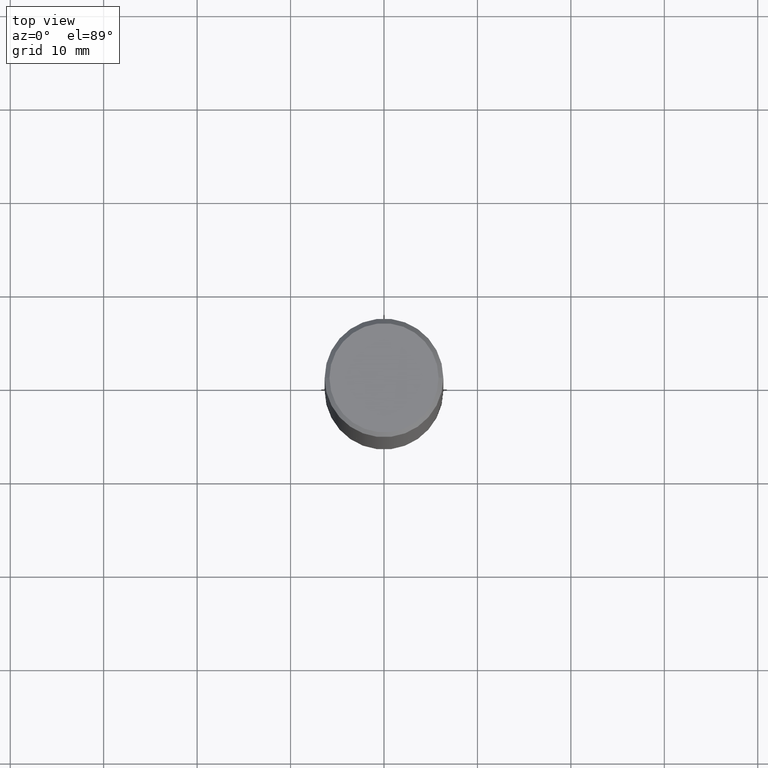
[diagram: clean part render]
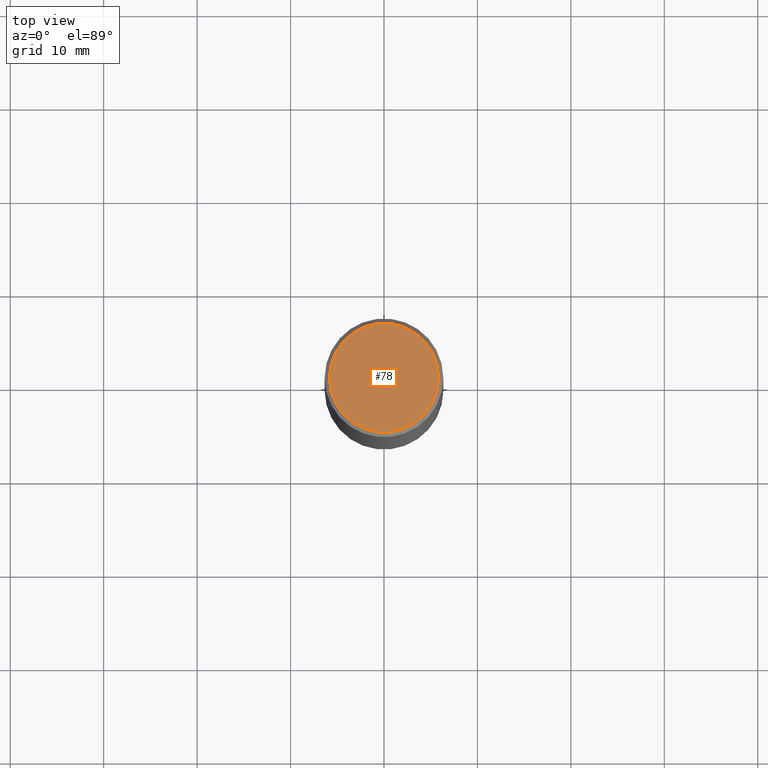
[diagram: same view with one face highlighted and labeled with its STEP entity id]
A machine part, top view. The second image highlights one B-rep face of the part: STEP entity #78.
In plain terms, the highlighted planar face has unit normal (0, -0, -1).
Its self-contained STEP definition (entity closure, byte-faithful):
#9 = EDGE_LOOP ( 'NONE', ( #346, #229 ) ) ;
#12 = CARTESIAN_POINT ( 'NONE',  ( -0.2299999999999996769, 1.640996229256270350E-15, 8.537024980189468815E-18 ) ) ;
#30 = EDGE_CURVE ( 'NONE', #311, #49, #39, .T. ) ;
#32 = AXIS2_PLACEMENT_3D ( 'NONE', #87, #293, #33 ) ;
#33 = DIRECTION ( 'NONE',  ( -1.000000000000000000, 6.982962677686265922E-15, -4.876176775795935793E-29 ) ) ;
#39 = CIRCLE ( 'NONE', #161, 0.2299999999999996769 ) ;
#49 = VERTEX_POINT ( 'NONE', #12 ) ;
#50 = CARTESIAN_POINT ( 'NONE',  ( -2.087702828670439639E-46, 2.980686340760894400E-32, 8.537024980200822558E-18 ) ) ;
#59 = AXIS2_PLACEMENT_3D ( 'NONE', #50, #167, #285 ) ;
#78 = ADVANCED_FACE ( 'NONE', ( #205 ), #204, .F. ) ;
#86 = CARTESIAN_POINT ( 'NONE',  ( -2.087702828670439639E-46, 2.980686340760894400E-32, 8.537024980200822558E-18 ) ) ;
#87 = CARTESIAN_POINT ( 'NONE',  ( 1.606081415867838898E-15, 0.2299999999999996769, -7.987721954438218819E-16 ) ) ;
#93 = DIRECTION ( 'NONE',  ( -2.445468806185136597E-29, 3.491481338843145583E-15, 1.000000000000000000 ) ) ;
#161 = AXIS2_PLACEMENT_3D ( 'NONE', #86, #93, #321 ) ;
#167 = DIRECTION ( 'NONE',  ( -2.445468806185136597E-29, 3.491481338843145583E-15, 1.000000000000000000 ) ) ;
#204 = PLANE ( 'NONE',  #32 ) ;
#205 = FACE_OUTER_BOUND ( 'NONE', #9, .T. ) ;
#216 = CARTESIAN_POINT ( 'NONE',  ( 0.2299999999999996769, -1.681434332853596842E-15, 8.537024980212318048E-18 ) ) ;
#229 = ORIENTED_EDGE ( 'NONE', *, *, #30, .T. ) ;
#253 = CIRCLE ( 'NONE', #59, 0.2299999999999996769 ) ;
#261 = EDGE_CURVE ( 'NONE', #49, #311, #253, .T. ) ;
#285 = DIRECTION ( 'NONE',  ( 1.000000000000000000, -6.982962677686266711E-15, 4.875813741439106500E-29 ) ) ;
#293 = DIRECTION ( 'NONE',  ( 2.438088387897960049E-29, -3.491481338843145188E-15, -1.000000000000000000 ) ) ;
#311 = VERTEX_POINT ( 'NONE', #216 ) ;
#321 = DIRECTION ( 'NONE',  ( 1.000000000000000000, -6.982962677686266711E-15, 4.875813741439106500E-29 ) ) ;
#346 = ORIENTED_EDGE ( 'NONE', *, *, #261, .T. ) ;